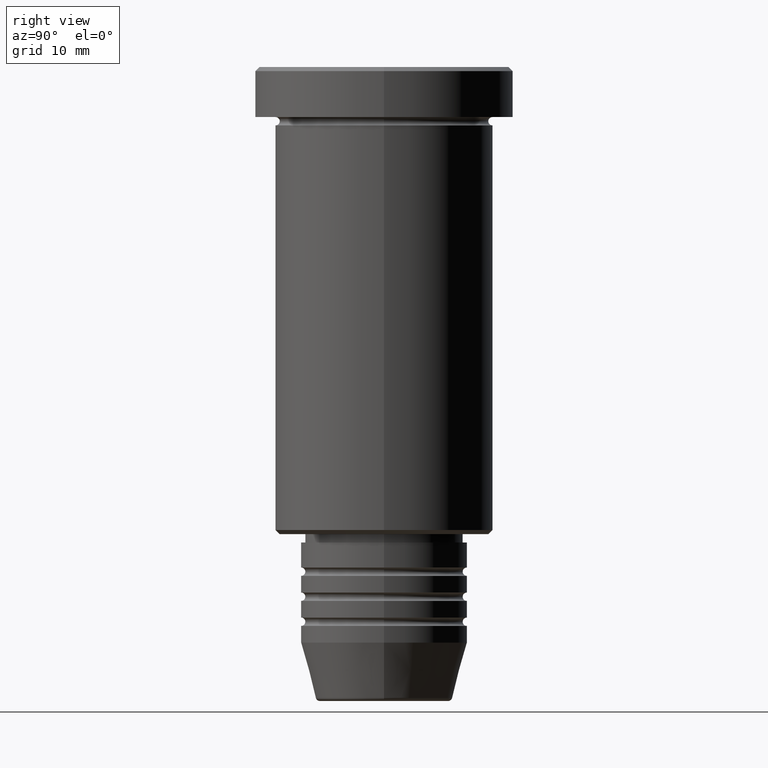
[diagram: clean part render]
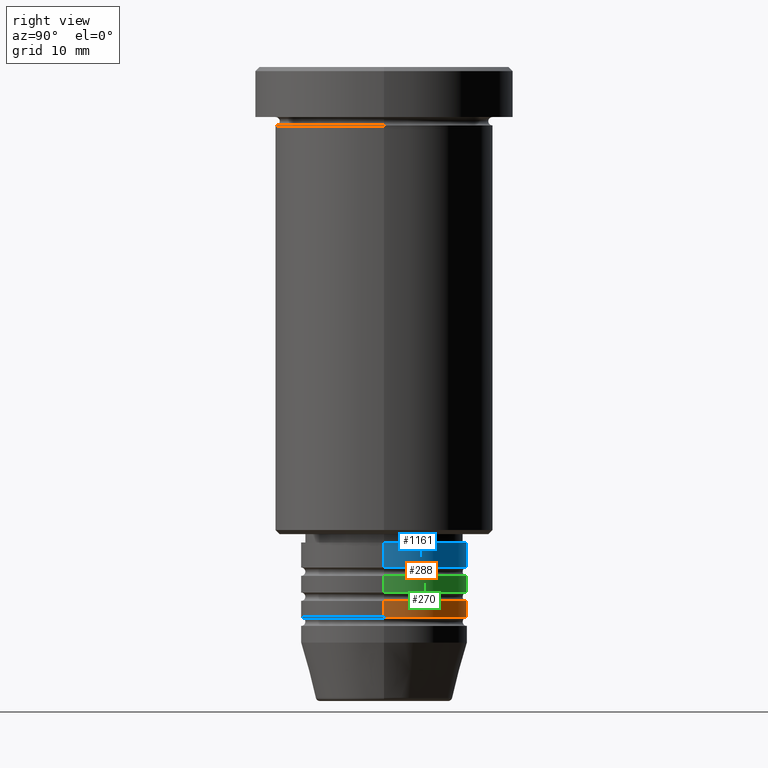
[diagram: same view with three faces highlighted in distinct colors, each labeled with its STEP entity id]
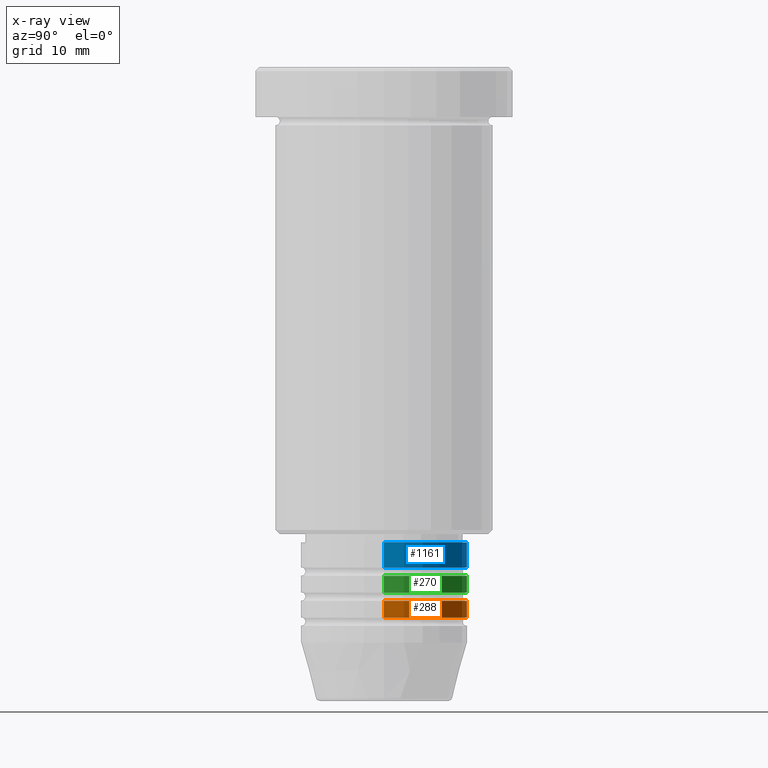
[diagram: x-ray of the same camera — body ghosted, the three highlighted faces saturated]
A machine part, right view with three faces highlighted in distinct colors.
The next image is the same camera in x-ray (body ghosted, the three faces saturated) — at least one of them is partly hidden behind the body in this view.
Their STEP definitions:

[orange] entity #288 — the highlighted cylindrical surface (partial cylindrical patch) has radius 10 mm, axis along (-0, -0, 1).
#49 = DIRECTION ( 'NONE',  ( 1.000000000000000000, 0.000000000000000000, 0.000000000000000000 ) ) ;
#108 = FACE_OUTER_BOUND ( 'NONE', #506, .T. ) ;
#114 = VECTOR ( 'NONE', #788, 1000.000000000000000 ) ;
#197 = EDGE_CURVE ( 'NONE', #422, #285, #572, .T. ) ;
#259 = CARTESIAN_POINT ( 'NONE',  ( 0.000000000000000000, 0.000000000000000000, -65.99999999999998579 ) ) ;
#285 = VERTEX_POINT ( 'NONE', #580 ) ;
#288 = ADVANCED_FACE ( 'NONE', ( #108 ), #375, .T. ) ;
#305 = AXIS2_PLACEMENT_3D ( 'NONE', #472, #830, #1025 ) ;
#320 = DIRECTION ( 'NONE',  ( -0.000000000000000000, -0.000000000000000000, 1.000000000000000000 ) ) ;
#375 = CYLINDRICAL_SURFACE ( 'NONE', #305, 10.00000000000000000 ) ;
#417 = DIRECTION ( 'NONE',  ( -0.000000000000000000, -0.000000000000000000, 1.000000000000000000 ) ) ;
#422 = VERTEX_POINT ( 'NONE', #592 ) ;
#472 = CARTESIAN_POINT ( 'NONE',  ( 0.000000000000000000, 0.000000000000000000, 0.000000000000000000 ) ) ;
#490 = EDGE_CURVE ( 'NONE', #285, #911, #863, .T. ) ;
#506 = EDGE_LOOP ( 'NONE', ( #893, #1121, #634, #840 ) ) ;
#572 = CIRCLE ( 'NONE', #1180, 10.00000000000000000 ) ;
#580 = CARTESIAN_POINT ( 'NONE',  ( -10.00000000000000000, 1.224646799147353256E-15, -65.99999999999998579 ) ) ;
#590 = CARTESIAN_POINT ( 'NONE',  ( 0.000000000000000000, 0.000000000000000000, -63.99999999999998579 ) ) ;
#592 = CARTESIAN_POINT ( 'NONE',  ( 10.00000000000000000, 0.000000000000000000, -65.99999999999998579 ) ) ;
#612 = AXIS2_PLACEMENT_3D ( 'NONE', #590, #320, #49 ) ;
#623 = DIRECTION ( 'NONE',  ( -0.000000000000000000, -0.000000000000000000, 1.000000000000000000 ) ) ;
#634 = ORIENTED_EDGE ( 'NONE', *, *, #994, .F. ) ;
#745 = VECTOR ( 'NONE', #417, 1000.000000000000000 ) ;
#780 = CARTESIAN_POINT ( 'NONE',  ( -10.00000000000000000, 1.224646799147353256E-15, -63.99999999999998579 ) ) ;
#788 = DIRECTION ( 'NONE',  ( -0.000000000000000000, -0.000000000000000000, 1.000000000000000000 ) ) ;
#790 = CARTESIAN_POINT ( 'NONE',  ( -10.00000000000000000, 1.224646799147353256E-15, 0.000000000000000000 ) ) ;
#793 = CARTESIAN_POINT ( 'NONE',  ( 10.00000000000000000, 0.000000000000000000, -63.99999999999998579 ) ) ;
#830 = DIRECTION ( 'NONE',  ( -0.000000000000000000, -0.000000000000000000, 1.000000000000000000 ) ) ;
#840 = ORIENTED_EDGE ( 'NONE', *, *, #1114, .F. ) ;
#863 = LINE ( 'NONE', #790, #745 ) ;
#889 = LINE ( 'NONE', #1175, #114 ) ;
#893 = ORIENTED_EDGE ( 'NONE', *, *, #197, .T. ) ;
#911 = VERTEX_POINT ( 'NONE', #780 ) ;
#994 = EDGE_CURVE ( 'NONE', #1098, #911, #1084, .T. ) ;
#1025 = DIRECTION ( 'NONE',  ( 1.000000000000000000, 0.000000000000000000, 0.000000000000000000 ) ) ;
#1084 = CIRCLE ( 'NONE', #612, 10.00000000000000000 ) ;
#1098 = VERTEX_POINT ( 'NONE', #793 ) ;
#1114 = EDGE_CURVE ( 'NONE', #422, #1098, #889, .T. ) ;
#1121 = ORIENTED_EDGE ( 'NONE', *, *, #490, .T. ) ;
#1162 = DIRECTION ( 'NONE',  ( 1.000000000000000000, 0.000000000000000000, 0.000000000000000000 ) ) ;
#1175 = CARTESIAN_POINT ( 'NONE',  ( 10.00000000000000000, 0.000000000000000000, 0.000000000000000000 ) ) ;
#1180 = AXIS2_PLACEMENT_3D ( 'NONE', #259, #623, #1162 ) ;

[blue] entity #1161 — the highlighted cylindrical surface (partial cylindrical patch) has radius 10 mm, axis along (-0, -0, 1).
#20 = VECTOR ( 'NONE', #449, 1000.000000000000000 ) ;
#75 = AXIS2_PLACEMENT_3D ( 'NONE', #755, #569, #1116 ) ;
#88 = ORIENTED_EDGE ( 'NONE', *, *, #374, .T. ) ;
#122 = VERTEX_POINT ( 'NONE', #820 ) ;
#163 = CARTESIAN_POINT ( 'NONE',  ( 10.00000000000000000, 0.000000000000000000, 0.000000000000000000 ) ) ;
#207 = CYLINDRICAL_SURFACE ( 'NONE', #804, 10.00000000000000000 ) ;
#232 = EDGE_CURVE ( 'NONE', #122, #1002, #494, .T. ) ;
#256 = CARTESIAN_POINT ( 'NONE',  ( -10.00000000000000000, 1.224646799147353256E-15, 0.000000000000000000 ) ) ;
#265 = AXIS2_PLACEMENT_3D ( 'NONE', #1104, #294, #881 ) ;
#294 = DIRECTION ( 'NONE',  ( -0.000000000000000000, -0.000000000000000000, 1.000000000000000000 ) ) ;
#301 = CARTESIAN_POINT ( 'NONE',  ( 0.000000000000000000, 0.000000000000000000, 0.000000000000000000 ) ) ;
#355 = LINE ( 'NONE', #256, #20 ) ;
#361 = DIRECTION ( 'NONE',  ( -0.000000000000000000, -0.000000000000000000, 1.000000000000000000 ) ) ;
#374 = EDGE_CURVE ( 'NONE', #1156, #593, #778, .T. ) ;
#411 = CARTESIAN_POINT ( 'NONE',  ( -10.00000000000000000, 1.224646799147353256E-15, -57.00000000000000711 ) ) ;
#449 = DIRECTION ( 'NONE',  ( -0.000000000000000000, -0.000000000000000000, 1.000000000000000000 ) ) ;
#454 = DIRECTION ( 'NONE',  ( -0.000000000000000000, -0.000000000000000000, 1.000000000000000000 ) ) ;
#494 = CIRCLE ( 'NONE', #75, 10.00000000000000000 ) ;
#544 = ORIENTED_EDGE ( 'NONE', *, *, #677, .T. ) ;
#569 = DIRECTION ( 'NONE',  ( -0.000000000000000000, -0.000000000000000000, 1.000000000000000000 ) ) ;
#585 = EDGE_CURVE ( 'NONE', #1156, #122, #1176, .T. ) ;
#593 = VERTEX_POINT ( 'NONE', #982 ) ;
#610 = VECTOR ( 'NONE', #454, 1000.000000000000000 ) ;
#628 = EDGE_LOOP ( 'NONE', ( #88, #544, #814, #680 ) ) ;
#677 = EDGE_CURVE ( 'NONE', #593, #1002, #355, .T. ) ;
#680 = ORIENTED_EDGE ( 'NONE', *, *, #585, .F. ) ;
#755 = CARTESIAN_POINT ( 'NONE',  ( 0.000000000000000000, 0.000000000000000000, -57.00000000000000711 ) ) ;
#778 = CIRCLE ( 'NONE', #265, 10.00000000000000000 ) ;
#804 = AXIS2_PLACEMENT_3D ( 'NONE', #301, #361, #1182 ) ;
#814 = ORIENTED_EDGE ( 'NONE', *, *, #232, .F. ) ;
#815 = CARTESIAN_POINT ( 'NONE',  ( 10.00000000000000000, 0.000000000000000000, -59.99999999999998579 ) ) ;
#820 = CARTESIAN_POINT ( 'NONE',  ( 10.00000000000000000, 0.000000000000000000, -57.00000000000000711 ) ) ;
#881 = DIRECTION ( 'NONE',  ( 1.000000000000000000, 0.000000000000000000, 0.000000000000000000 ) ) ;
#982 = CARTESIAN_POINT ( 'NONE',  ( -10.00000000000000000, 1.224646799147353256E-15, -59.99999999999998579 ) ) ;
#1002 = VERTEX_POINT ( 'NONE', #411 ) ;
#1104 = CARTESIAN_POINT ( 'NONE',  ( 0.000000000000000000, 0.000000000000000000, -59.99999999999998579 ) ) ;
#1112 = FACE_OUTER_BOUND ( 'NONE', #628, .T. ) ;
#1116 = DIRECTION ( 'NONE',  ( 1.000000000000000000, 0.000000000000000000, 0.000000000000000000 ) ) ;
#1156 = VERTEX_POINT ( 'NONE', #815 ) ;
#1161 = ADVANCED_FACE ( 'NONE', ( #1112 ), #207, .T. ) ;
#1176 = LINE ( 'NONE', #163, #610 ) ;
#1182 = DIRECTION ( 'NONE',  ( 1.000000000000000000, 0.000000000000000000, 0.000000000000000000 ) ) ;

[green] entity #270 — the highlighted cylindrical surface (partial cylindrical patch) has radius 10 mm, axis along (-0, -0, 1).
#33 = DIRECTION ( 'NONE',  ( -0.000000000000000000, -0.000000000000000000, 1.000000000000000000 ) ) ;
#62 = VERTEX_POINT ( 'NONE', #318 ) ;
#104 = DIRECTION ( 'NONE',  ( -0.000000000000000000, -0.000000000000000000, 1.000000000000000000 ) ) ;
#131 = AXIS2_PLACEMENT_3D ( 'NONE', #195, #384, #564 ) ;
#153 = AXIS2_PLACEMENT_3D ( 'NONE', #507, #871, #525 ) ;
#170 = ORIENTED_EDGE ( 'NONE', *, *, #866, .F. ) ;
#177 = VERTEX_POINT ( 'NONE', #1170 ) ;
#195 = CARTESIAN_POINT ( 'NONE',  ( 0.000000000000000000, 0.000000000000000000, 0.000000000000000000 ) ) ;
#199 = CYLINDRICAL_SURFACE ( 'NONE', #131, 10.00000000000000000 ) ;
#201 = DIRECTION ( 'NONE',  ( 1.000000000000000000, 0.000000000000000000, 0.000000000000000000 ) ) ;
#252 = LINE ( 'NONE', #979, #723 ) ;
#270 = ADVANCED_FACE ( 'NONE', ( #303 ), #199, .T. ) ;
#291 = CARTESIAN_POINT ( 'NONE',  ( 0.000000000000000000, 0.000000000000000000, -62.99999999999998579 ) ) ;
#303 = FACE_OUTER_BOUND ( 'NONE', #1127, .T. ) ;
#318 = CARTESIAN_POINT ( 'NONE',  ( 10.00000000000000000, 0.000000000000000000, -62.99999999999998579 ) ) ;
#362 = DIRECTION ( 'NONE',  ( -0.000000000000000000, -0.000000000000000000, 1.000000000000000000 ) ) ;
#369 = ORIENTED_EDGE ( 'NONE', *, *, #530, .F. ) ;
#384 = DIRECTION ( 'NONE',  ( -0.000000000000000000, -0.000000000000000000, 1.000000000000000000 ) ) ;
#406 = CARTESIAN_POINT ( 'NONE',  ( 10.00000000000000000, 0.000000000000000000, -60.99999999999998579 ) ) ;
#461 = VECTOR ( 'NONE', #33, 1000.000000000000000 ) ;
#477 = VERTEX_POINT ( 'NONE', #406 ) ;
#489 = LINE ( 'NONE', #1120, #461 ) ;
#507 = CARTESIAN_POINT ( 'NONE',  ( 0.000000000000000000, 0.000000000000000000, -60.99999999999998579 ) ) ;
#525 = DIRECTION ( 'NONE',  ( 1.000000000000000000, 0.000000000000000000, 0.000000000000000000 ) ) ;
#530 = EDGE_CURVE ( 'NONE', #477, #733, #667, .T. ) ;
#537 = CIRCLE ( 'NONE', #1011, 10.00000000000000000 ) ;
#564 = DIRECTION ( 'NONE',  ( 1.000000000000000000, 0.000000000000000000, 0.000000000000000000 ) ) ;
#638 = ORIENTED_EDGE ( 'NONE', *, *, #1169, .T. ) ;
#656 = EDGE_CURVE ( 'NONE', #177, #733, #252, .T. ) ;
#667 = CIRCLE ( 'NONE', #153, 10.00000000000000000 ) ;
#708 = ORIENTED_EDGE ( 'NONE', *, *, #656, .T. ) ;
#723 = VECTOR ( 'NONE', #362, 1000.000000000000000 ) ;
#733 = VERTEX_POINT ( 'NONE', #919 ) ;
#866 = EDGE_CURVE ( 'NONE', #62, #477, #489, .T. ) ;
#871 = DIRECTION ( 'NONE',  ( -0.000000000000000000, -0.000000000000000000, 1.000000000000000000 ) ) ;
#919 = CARTESIAN_POINT ( 'NONE',  ( -10.00000000000000000, 1.224646799147353256E-15, -60.99999999999998579 ) ) ;
#979 = CARTESIAN_POINT ( 'NONE',  ( -10.00000000000000000, 1.224646799147353256E-15, 0.000000000000000000 ) ) ;
#1011 = AXIS2_PLACEMENT_3D ( 'NONE', #291, #104, #201 ) ;
#1120 = CARTESIAN_POINT ( 'NONE',  ( 10.00000000000000000, 0.000000000000000000, 0.000000000000000000 ) ) ;
#1127 = EDGE_LOOP ( 'NONE', ( #638, #708, #369, #170 ) ) ;
#1169 = EDGE_CURVE ( 'NONE', #62, #177, #537, .T. ) ;
#1170 = CARTESIAN_POINT ( 'NONE',  ( -10.00000000000000000, 1.224646799147353256E-15, -62.99999999999998579 ) ) ;